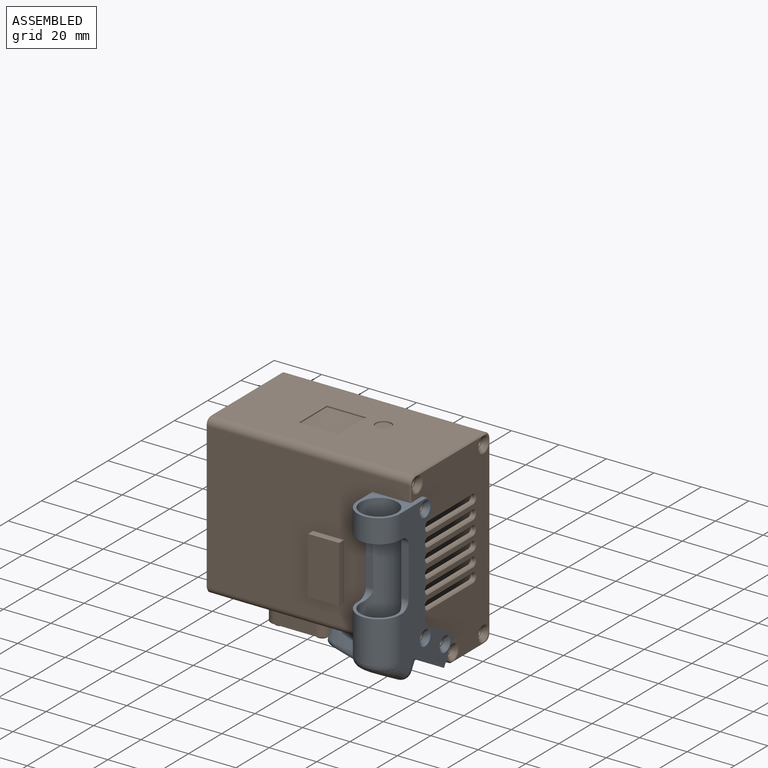
[diagram: assembled view]
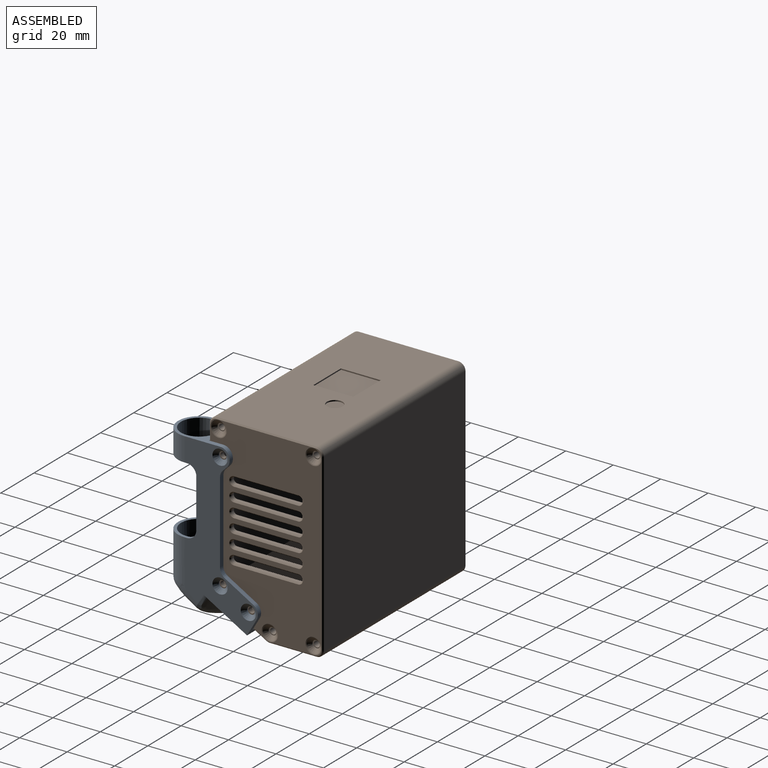
[diagram: assembled view, second angle]
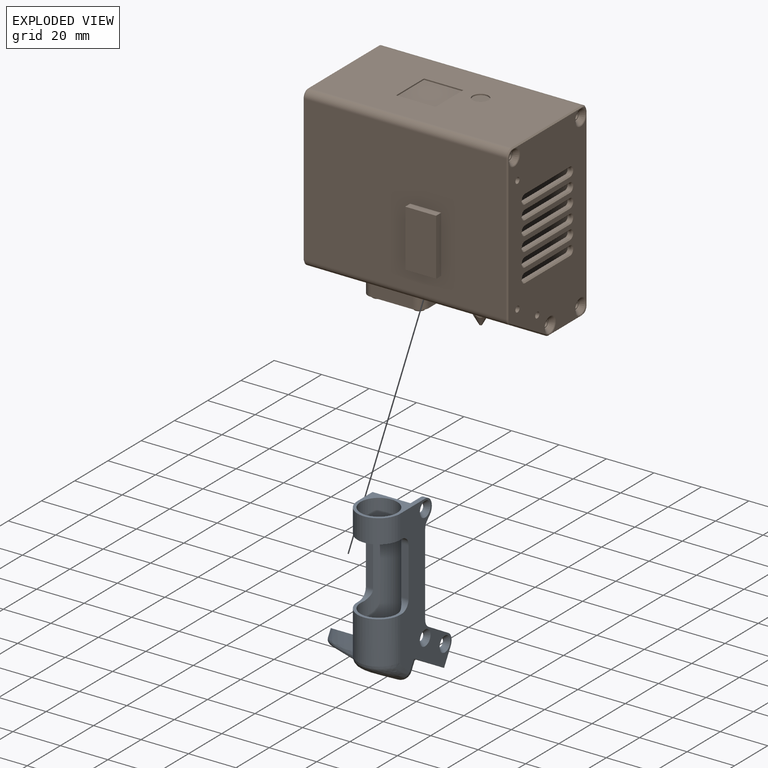
[diagram: exploded view]
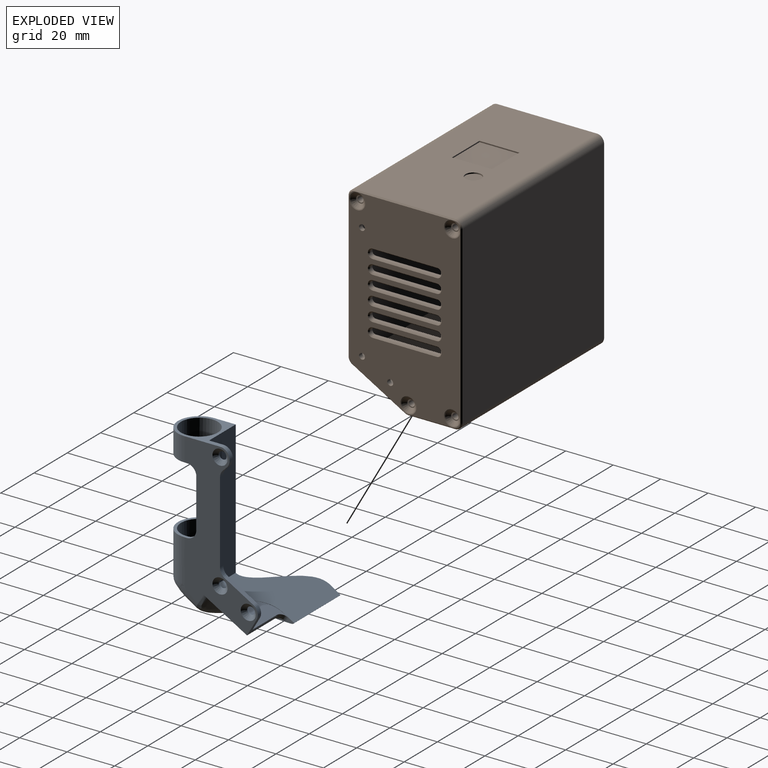
[diagram: exploded view, second angle]
ASSEMBLY  parts=2 mates=2
PART A: 44 faces, bbox 49.5x42.7x74.7 mm
  f0: plane 18x10mm, normal (0,0,-1), area 35.4mm2, adj f4,f6,f9,f30,f33,f34
  f1: bspline ~49.36x28.75mm, area 862.3mm2, adj f3,f4,f6,f11,f14,f21,f22,f23
  f2: plane 56.5x16mm, normal (0,1,0), area 904mm2, adj f3,f4,f20,f21
  f3: plane 45.86x23.54mm, normal (0,0.5,0.87), area 651.9mm2, adj f1,f2,f21,f42
  f4: plane 62.27x9.13mm, normal (-1,0,0), area 402.6mm2, adj f0,f1,f2,f5,f7,f11,f20,f30
  f5: cylinder r=9mm len=18mm, axis (0,0,-1), area 508.9mm2, adj f4,f6,f7,f11
  f6: plane 68.96x31.02mm, normal (1,0,0), area 895mm2, adj f0,f1,f5,f7,f11,f15,f16,f17
  f7: plane 18x10mm, normal (0,0,1), area 35.4mm2, adj f4,f5,f6,f9,f35,f36
  f8: plane 15.5x15.5mm, normal (0,0,1), area 75.6mm2, adj f9,f10
  f9: cylinder r=7.75mm len=52.5mm, axis (0,0,1), area 1569.2mm2, adj f0,f7,f8,f20,f31,f32,f33,f34
  f10: cylinder r=6mm len=12mm, axis (0,0,1), area 150.8mm2, adj f8,f12
  f11: bspline ~18x16.95mm, area 328mm2, adj f1,f4,f5,f6
  f12: bspline ~15x14.25mm, area 309mm2, adj f10,f13
  f13: bspline ~44.79x27.26mm, area 1326.2mm2, adj f12,f14,f42
  f14: plane 28.31x8.76mm, normal (0,0,-1), area 71.1mm2, adj f1,f13,f42
  f15: plane 16.61x6.93mm, normal (0,0.87,-0.5), area 45.2mm2, adj f6,f21,f22,f23,f37,f43
  f16: plane 11.9x6.87mm, normal (0,0.5,0.87), area 27.5mm2, adj f6,f21,f37,f38
  f17: plane 34.45x2mm, normal (0,1,0), area 68.9mm2, adj f6,f21,f38,f39
  f18: plane 2x1.66mm, normal (0,0.71,-0.71), area 4.7mm2, adj f6,f21,f39,f40
  f19: plane 2x0.34mm, normal (0,1,0), area 0.7mm2, adj f6,f21,f40,f41
  f20: plane 24x18mm, normal (0,0,1), area 112.5mm2, adj f2,f4,f6,f9,f21,f30,f41
  f21: plane 67.1x21.9mm, normal (-1,0,0), area 521.3mm2, adj f1,f2,f3,f15,f16,f17,f18,f19
  f22: plane 17.9x17.79mm, normal (0,0.5,0.87), area 189.6mm2, adj f1,f15,f21,f43
  f23: plane 21.2x19.79mm, normal (0,-0.5,-0.87), area 226.8mm2, adj f1,f6,f15,f43
  f24: cylinder r=1.65mm len=3.3mm, axis (1,0,0), area 4.7mm2, adj f21,f25
  f25: cone r=1.65mm half-angle=45deg, axis (1,0,0), area 33.4mm2, adj f6,f24
  f26: cylinder r=1.65mm len=3.3mm, axis (1,0,0), area 4.7mm2, adj f21,f27
  f27: cone r=1.65mm half-angle=45deg, axis (1,0,0), area 33.4mm2, adj f6,f26
  f28: cylinder r=1.65mm len=3.3mm, axis (1,0,0), area 4.7mm2, adj f21,f29
  f29: cone r=1.65mm half-angle=45deg, axis (1,0,0), area 33.4mm2, adj f6,f28
  f30: cylinder r=9mm len=18mm, axis (0,0,1), area 282.7mm2, adj f0,f4,f6,f20
  f31: plane 20.5x3.08mm, normal (0,-1,0), area 63.1mm2, adj f4,f9,f34,f36
  f32: plane 20.5x3.08mm, normal (0,-1,0), area 63.1mm2, adj f6,f9,f33,f35
  f33: cylinder r=4mm len=4mm, axis (-1,0,0), area 13.8mm2, adj f0,f6,f9,f32
  f34: cylinder r=4mm len=4mm, axis (-1,0,0), area 13.8mm2, adj f0,f4,f9,f31
  f35: cylinder r=4mm len=4mm, axis (1,0,0), area 13.8mm2, adj f6,f7,f9,f32
  f36: cylinder r=4mm len=4mm, axis (1,0,0), area 13.8mm2, adj f4,f7,f9,f31
  f37: cylinder r=4mm len=5.46mm, axis (-1,0,0), area 12.6mm2, adj f6,f15,f16,f21
  f38: cylinder r=4mm len=3.46mm, axis (-1,0,0), area 8.4mm2, adj f6,f16,f17,f21
  f39: cylinder r=4mm len=2.83mm, axis (1,0,0), area 6.3mm2, adj f6,f17,f18,f21
  f40: cylinder r=4mm len=2.83mm, axis (-1,0,0), area 6.3mm2, adj f6,f18,f19,f21
  f41: cylinder r=4mm len=4mm, axis (1,0,0), area 12.6mm2, adj f6,f19,f20,f21
  f42: cylinder r=1.5mm len=28.02mm, axis (-1,0,0), area 26.9mm2, adj f1,f3,f13,f14
  f43: bspline ~9.59x7.37mm, area 9.7mm2, adj f1,f15,f22,f23
PART B: 227 faces, bbox 86.2x51x86.8 mm
  f0: plane 3.3x3.3mm, normal (-1,0,0), area 3.6mm2, adj f76,f157
  f1: plane 3.3x3.3mm, normal (-1,0,0), area 3.6mm2, adj f77,f159
  f2: plane 3.3x3.3mm, normal (-1,0,0), area 3.6mm2, adj f78,f161
  f3: plane 3.3x3.3mm, normal (-1,0,0), area 3.6mm2, adj f79,f163
  f4: plane 3.3x3.3mm, normal (1,0,0), area 3.6mm2, adj f76,f82
  f5: plane 3.3x3.3mm, normal (1,0,0), area 3.6mm2, adj f77,f84
  f6: plane 3.3x3.3mm, normal (1,0,0), area 3.6mm2, adj f78,f86
  f7: plane 3.3x3.3mm, normal (1,0,0), area 3.6mm2, adj f79,f88
  f8: plane 85.2x29.1mm, normal (0,0,-1), area 1232.6mm2, adj f25,f26,f27,f28,f29,f30,f32,f34
  f9: plane 85.2x22.3mm, normal (0,-0.5,-0.87), area 1962.7mm2, adj f25,f26,f27,f28,f29,f59,f63,f64
  f10: plane 85.2x42mm, normal (0,0,1), area 3264.3mm2, adj f18,f19,f20,f21,f23,f61,f62,f142
  f11: plane 85.2x61.26mm, normal (0,-1,0), area 4907.3mm2, adj f13,f14,f15,f16,f62,f63,f145,f220
  f12: plane 85.2x74mm, normal (0,1,0), area 6304.8mm2, adj f60,f61,f146,f221
  f13: plane 13x3mm, normal (0,0,1), area 39mm2, adj f11,f14,f16,f17
  f14: plane 24x3mm, normal (-1,0,0), area 72mm2, adj f11,f13,f15,f17
  f15: plane 13x3mm, normal (0,0,-1), area 39mm2, adj f11,f14,f16,f17
  f16: plane 24x3mm, normal (1,0,0), area 72mm2, adj f11,f13,f15,f17
  f17: plane 24x13mm, normal (0,-1,0), area 312mm2, adj f13,f14,f15,f16
  f18: plane 16.6x0.5mm, normal (0,-1,0), area 8.3mm2, adj f10,f19,f21,f22
  f19: plane 16.8x0.5mm, normal (1,0,0), area 8.4mm2, adj f10,f18,f20,f22
  f20: plane 16.6x0.5mm, normal (0,1,0), area 8.3mm2, adj f10,f19,f21,f22
  f21: plane 16.8x0.5mm, normal (-1,0,0), area 8.4mm2, adj f10,f18,f20,f22
  f22: plane 16.8x16.6mm, normal (0,0,1), area 278.9mm2, adj f18,f19,f20,f21
  f23: cylinder r=3.35mm len=6.7mm, axis (0,0,1), area 10.5mm2, adj f10,f24
  f24: plane 6.7x6.7mm, normal (0,0,1), area 35.3mm2, adj f23
  f25: plane 5.4x2.63mm, normal (1,0,0), area 6.1mm2, adj f8,f9,f26,f64
  f26: cylinder r=4mm len=4.91mm, axis (0,0,-1), area 25.7mm2, adj f8,f9,f25,f27
  f27: plane 17.6x4.91mm, normal (0,-1,0), area 86.5mm2, adj f8,f9,f26,f28
  f28: cylinder r=4mm len=4.91mm, axis (0,0,-1), area 25.7mm2, adj f8,f9,f27,f29
  f29: plane 5.4x2.63mm, normal (-1,0,0), area 6.1mm2, adj f8,f9,f28,f59
  f30: cylinder r=2.5mm len=5mm, axis (0,0,1), area 7.9mm2, adj f8,f41
  f31: plane 3x3mm, normal (0,0,-1), area 7.1mm2, adj f41
  f32: cylinder r=2.5mm len=5mm, axis (0,0,1), area 7.9mm2, adj f8,f40
  f33: plane 3x3mm, normal (0,0,-1), area 7.1mm2, adj f40
  f34: cylinder r=2.5mm len=5mm, axis (0,0,1), area 7.9mm2, adj f8,f39
  f35: plane 3x3mm, normal (0,0,-1), area 7.1mm2, adj f39
  f36: cylinder r=2.5mm len=5mm, axis (0,0,1), area 7.9mm2, adj f8,f38
  f37: plane 3x3mm, normal (0,0,-1), area 7.1mm2, adj f38
  f38: torus R=1.5mm, axis (0,0,-1), area 21.1mm2, adj f36,f37
  f39: torus R=1.5mm, axis (0,0,-1), area 21.1mm2, adj f34,f35
  f40: torus R=1.5mm, axis (0,0,-1), area 21.1mm2, adj f32,f33
  f41: torus R=1.5mm, axis (0,0,-1), area 21.1mm2, adj f30,f31
  f42: plane 27.1x1.94mm, normal (0,1,0), area 52.6mm2, adj f43,f49,f50,f64
  f43: cylinder r=2mm len=2mm, axis (0,0,-1), area 6.2mm2, adj f8,f42,f44,f50,f64
  f44: plane 16x2mm, normal (1,0,0), area 32mm2, adj f8,f43,f45,f50
  f45: cylinder r=2mm len=2mm, axis (0,0,-1), area 6.3mm2, adj f8,f44,f46,f50
  f46: plane 27.1x2mm, normal (0,-1,0), area 54.2mm2, adj f8,f45,f47,f50
  f47: cylinder r=2mm len=2mm, axis (0,0,-1), area 6.3mm2, adj f8,f46,f48,f50
  f48: plane 16x2mm, normal (-1,0,0), area 32mm2, adj f8,f47,f49,f50
  f49: cylinder r=2mm len=2mm, axis (0,0,-1), area 6.2mm2, adj f8,f42,f48,f50,f64
  f50: plane 31.1x20mm, normal (0,0,-1), area 595.2mm2, adj f42,f43,f44,f45,f46,f47,f48,f49
  f51: plane 1x1mm, normal (0,0,-1), area 0.8mm2, adj f52
  f52: cone r=0.5mm half-angle=29.1deg, axis (0,0,1), area 46.5mm2, adj f51,f53,f54,f55,f56,f57,f58
  f53: plane 5.03x2.6mm, normal (0.5,-0.87,0), area 14.3mm2, adj f50,f52,f54,f58
  f54: plane 5.03x2.6mm, normal (-0.5,-0.87,0), area 14.3mm2, adj f50,f52,f53,f55
  f55: plane 5.02x3mm, normal (-1,0,0), area 14.3mm2, adj f50,f52,f54,f56
  f56: plane 5.03x2.6mm, normal (-0.5,0.87,0), area 14.3mm2, adj f50,f52,f55,f57
  f57: plane 5.03x2.6mm, normal (0.5,0.87,0), area 14.3mm2, adj f50,f52,f56,f58
  f58: plane 5.02x3mm, normal (1,0,0), area 14.3mm2, adj f50,f52,f53,f57
  f59: cylinder r=3mm len=13mm, axis (1,0,0), area 20.2mm2, adj f8,f9,f29,f226
  f60: cylinder r=3mm len=85.2mm, axis (1,0,0), area 401.5mm2, adj f8,f12,f148,f223
  f61: cylinder r=3mm len=85.2mm, axis (-1,0,0), area 401.5mm2, adj f10,f12,f144,f219
  f62: cylinder r=3mm len=85.2mm, axis (1,0,0), area 401.5mm2, adj f10,f11,f143,f218
  f63: cylinder r=3mm len=85.2mm, axis (1,0,0), area 268.8mm2, adj f9,f11,f147,f222
  f64: cylinder r=3mm len=46.6mm, axis (1,0,0), area 55.1mm2, adj f8,f9,f25,f42,f43,f49,f151
  f65: plane 82.2x66mm, normal (0,-1,0), area 5425.2mm2, adj f66,f73,f81,f156
  f66: cylinder r=4mm len=82.2mm, axis (1,0,0), area 516.5mm2, adj f65,f67,f81,f156
  f67: plane 82.2x34.3mm, normal (0,0,-1), area 2819.5mm2, adj f66,f68,f81,f156
  f68: cylinder r=4mm len=82.2mm, axis (1,0,0), area 407.6mm2, adj f67,f69,f81,f156
  f69: plane 82.2x15.22mm, normal (0,1,0), area 1250.8mm2, adj f68,f70,f81,f156
  f70: plane 82.2x1.3mm, normal (0,0,-1), area 106.9mm2, adj f69,f71,f81,f156
  f71: plane 82.2x42.09mm, normal (0,1,0), area 3459.6mm2, adj f70,f72,f81,f156
  f72: plane 82.2x19.12mm, normal (0,0.5,0.87), area 1810.5mm2, adj f71,f74,f81,f156
  f73: cylinder r=4mm len=82.2mm, axis (1,0,0), area 516.5mm2, adj f65,f75,f81,f156
  f74: cylinder r=4mm len=82.2mm, axis (1,0,0), area 862.3mm2, adj f72,f75,f81,f156
  f75: plane 82.2x11.7mm, normal (0,0,1), area 962mm2, adj f73,f74,f81,f156
  f76: cylinder r=1.25mm len=82.2mm, axis (1,0,0), area 645.6mm2, adj f0,f4
  f77: cylinder r=1.25mm len=82.2mm, axis (1,0,0), area 645.6mm2, adj f1,f5
  f78: cylinder r=1.25mm len=82.2mm, axis (1,0,0), area 645.6mm2, adj f2,f6
  f79: cylinder r=1.25mm len=82.2mm, axis (1,0,0), area 645.6mm2, adj f3,f7
  f80: plane 79x47mm, normal (1,0,0), area 2658.2mm2, adj f114,f115,f116,f117,f118,f119,f120,f121
  f81: plane 74x42.3mm, normal (-1,0,0), area 2362.9mm2, adj f65,f66,f67,f68,f69,f70,f71,f72
  f82: cylinder r=1.65mm len=3.3mm, axis (1,0,0), area 4.7mm2, adj f4,f83
  f83: cone r=1.65mm half-angle=45deg, axis (1,0,0), area 29.3mm2, adj f82,f138
  f84: cylinder r=1.65mm len=3.3mm, axis (1,0,0), area 4.7mm2, adj f5,f85
  f85: cone r=1.65mm half-angle=45deg, axis (1,0,0), area 29.3mm2, adj f84,f139
  f86: cylinder r=1.65mm len=3.3mm, axis (1,0,0), area 4.7mm2, adj f6,f87
  f87: cone r=1.65mm half-angle=45deg, axis (1,0,0), area 29.3mm2, adj f86,f140
  f88: cylinder r=1.65mm len=3.3mm, axis (1,0,0), area 4.7mm2, adj f7,f89
  f89: cone r=1.65mm half-angle=45deg, axis (1,0,0), area 29.3mm2, adj f88,f141
  f90: cylinder r=1.5mm len=3mm, axis (1,0,0), area 7.1mm2, adj f81,f91,f92,f114
  f91: plane 27x1.5mm, normal (0,0,-1), area 40.5mm2, adj f81,f90,f93,f115
  f92: plane 27x1.5mm, normal (0,0,1), area 40.5mm2, adj f81,f90,f93,f116
  f93: cylinder r=1.5mm len=3mm, axis (1,0,0), area 7.1mm2, adj f81,f91,f92,f117
  f94: cylinder r=1.5mm len=3mm, axis (1,0,0), area 7.1mm2, adj f81,f95,f96,f118
  f95: plane 27x1.5mm, normal (0,0,-1), area 40.5mm2, adj f81,f94,f97,f119
  f96: plane 27x1.5mm, normal (0,0,1), area 40.5mm2, adj f81,f94,f97,f120
  f97: cylinder r=1.5mm len=3mm, axis (1,0,0), area 7.1mm2, adj f81,f95,f96,f121
  f98: cylinder r=1.5mm len=3mm, axis (1,0,0), area 7.1mm2, adj f81,f99,f100,f122
  f99: plane 27x1.5mm, normal (0,0,-1), area 40.5mm2, adj f81,f98,f101,f123
  f100: plane 27x1.5mm, normal (0,0,1), area 40.5mm2, adj f81,f98,f101,f124
  f101: cylinder r=1.5mm len=3mm, axis (1,0,0), area 7.1mm2, adj f81,f99,f100,f125
  f102: cylinder r=1.5mm len=3mm, axis (1,0,0), area 7.1mm2, adj f81,f103,f104,f126
  f103: plane 27x1.5mm, normal (0,0,-1), area 40.5mm2, adj f81,f102,f105,f127
  f104: plane 27x1.5mm, normal (0,0,1), area 40.5mm2, adj f81,f102,f105,f128
  f105: cylinder r=1.5mm len=3mm, axis (1,0,0), area 7.1mm2, adj f81,f103,f104,f129
  f106: cylinder r=1.5mm len=3mm, axis (1,0,0), area 7.1mm2, adj f81,f107,f108,f130
  f107: plane 27x1.5mm, normal (0,0,-1), area 40.5mm2, adj f81,f106,f109,f131
  f108: plane 27x1.5mm, normal (0,0,1), area 40.5mm2, adj f81,f106,f109,f132
  f109: cylinder r=1.5mm len=3mm, axis (1,0,0), area 7.1mm2, adj f81,f107,f108,f133
  f110: cylinder r=1.5mm len=3mm, axis (1,0,0), area 7.1mm2, adj f81,f111,f112,f135
  f111: plane 27x1.5mm, normal (0,0,-1), area 40.5mm2, adj f81,f110,f113,f134
  f112: plane 27x1.5mm, normal (0,0,1), area 40.5mm2, adj f81,f110,f113,f137
  f113: cylinder r=1.5mm len=3mm, axis (1,0,0), area 7.1mm2, adj f81,f111,f112,f136
  f114: cone r=2mm half-angle=45deg, axis (1,0,0), area 3.9mm2, adj f80,f90,f115,f116
  f115: plane 27x0.5mm, normal (0.71,0,-0.71), area 19.1mm2, adj f80,f91,f114,f117
  f116: plane 27x0.5mm, normal (0.71,0,0.71), area 19.1mm2, adj f80,f92,f114,f117
  f117: cone r=2mm half-angle=45deg, axis (1,0,0), area 3.9mm2, adj f80,f93,f115,f116
  f118: cone r=2mm half-angle=45deg, axis (1,0,0), area 3.9mm2, adj f80,f94,f119,f120
  f119: plane 27x0.5mm, normal (0.71,0,-0.71), area 19.1mm2, adj f80,f95,f118,f121
  f120: plane 27x0.5mm, normal (0.71,0,0.71), area 19.1mm2, adj f80,f96,f118,f121
  f121: cone r=2mm half-angle=45deg, axis (1,0,0), area 3.9mm2, adj f80,f97,f119,f120
  f122: cone r=2mm half-angle=45deg, axis (1,0,0), area 3.9mm2, adj f80,f98,f123,f124
  f123: plane 27x0.5mm, normal (0.71,0,-0.71), area 19.1mm2, adj f80,f99,f122,f125
  f124: plane 27x0.5mm, normal (0.71,0,0.71), area 19.1mm2, adj f80,f100,f122,f125
  f125: cone r=2mm half-angle=45deg, axis (1,0,0), area 3.9mm2, adj f80,f101,f123,f124
  f126: cone r=2mm half-angle=45deg, axis (1,0,0), area 3.9mm2, adj f80,f102,f127,f128
  f127: plane 27x0.5mm, normal (0.71,0,-0.71), area 19.1mm2, adj f80,f103,f126,f129
  f128: plane 27x0.5mm, normal (0.71,0,0.71), area 19.1mm2, adj f80,f104,f126,f129
  f129: cone r=2mm half-angle=45deg, axis (1,0,0), area 3.9mm2, adj f80,f105,f127,f128
  f130: cone r=2mm half-angle=45deg, axis (1,0,0), area 3.9mm2, adj f80,f106,f131,f132
  f131: plane 27x0.5mm, normal (0.71,0,-0.71), area 19.1mm2, adj f80,f107,f130,f133
  f132: plane 27x0.5mm, normal (0.71,0,0.71), area 19.1mm2, adj f80,f108,f130,f133
  f133: cone r=2mm half-angle=45deg, axis (1,0,0), area 3.9mm2, adj f80,f109,f131,f132
  f134: plane 27x0.5mm, normal (0.71,0,-0.71), area 19.1mm2, adj f80,f111,f135,f136
  f135: cone r=2mm half-angle=45deg, axis (1,0,0), area 3.9mm2, adj f80,f110,f134,f137
  f136: cone r=2mm half-angle=45deg, axis (1,0,0), area 3.9mm2, adj f80,f113,f134,f137
  f137: plane 27x0.5mm, normal (0.71,0,0.71), area 19.1mm2, adj f80,f112,f135,f136
  f138: cone r=3.05mm half-angle=67.5deg, axis (1,0,0), area 7.8mm2, adj f80,f83
  f139: cone r=3.05mm half-angle=67.5deg, axis (1,0,0), area 7.8mm2, adj f80,f85
  f140: cone r=3.05mm half-angle=67.5deg, axis (1,0,0), area 7.8mm2, adj f80,f87
  f141: cone r=3.05mm half-angle=67.5deg, axis (1,0,0), area 7.8mm2, adj f80,f89
  f142: plane 42x0.5mm, normal (0.71,0,0.71), area 29.7mm2, adj f10,f80,f143,f144
  f143: cone r=2.5mm half-angle=45deg, axis (-1,0,0), area 3.1mm2, adj f62,f80,f142,f145
  f144: cone r=2.5mm half-angle=45deg, axis (-1,0,0), area 3.1mm2, adj f61,f80,f142,f146
  f145: plane 61.26x0.5mm, normal (0.71,-0.71,0), area 43.3mm2, adj f11,f80,f143,f147
  f146: plane 74x0.5mm, normal (0.71,0.71,0), area 52.3mm2, adj f12,f80,f144,f148
  f147: cone r=2.5mm half-angle=45deg, axis (-1,0,0), area 2mm2, adj f63,f80,f145,f149
  f148: cone r=2.5mm half-angle=45deg, axis (-1,0,0), area 3.1mm2, adj f60,f80,f146,f150
  f149: plane 22.54x13.18mm, normal (0.71,-0.35,-0.61), area 18.2mm2, adj f9,f80,f147,f151
  f150: plane 19.7x0.5mm, normal (0.71,0,-0.71), area 13.9mm2, adj f8,f80,f148,f151
  f151: cone r=2.5mm half-angle=45deg, axis (-1,0,0), area 1mm2, adj f64,f80,f149,f150
  f152: cylinder r=1.25mm len=2.5mm, axis (1,0,0), area 15.7mm2, adj f80,f81
  f153: cylinder r=1.25mm len=2.5mm, axis (1,0,0), area 15.7mm2, adj f80,f81
  f154: cylinder r=1.25mm len=2.5mm, axis (1,0,0), area 15.7mm2, adj f80,f81
  f155: plane 79x47mm, normal (-1,0,0), area 2672.9mm2, adj f189,f190,f191,f192,f193,f194,f195,f196
  f156: plane 74x42.3mm, normal (1,0,0), area 2377.6mm2, adj f65,f66,f67,f68,f69,f70,f71,f72
  f157: cylinder r=1.65mm len=3.3mm, axis (-1,0,0), area 4.7mm2, adj f0,f158
  f158: cone r=1.65mm half-angle=45deg, axis (-1,0,0), area 29.3mm2, adj f157,f213
  f159: cylinder r=1.65mm len=3.3mm, axis (-1,0,0), area 4.7mm2, adj f1,f160
  f160: cone r=1.65mm half-angle=45deg, axis (-1,0,0), area 29.3mm2, adj f159,f214
  f161: cylinder r=1.65mm len=3.3mm, axis (-1,0,0), area 4.7mm2, adj f2,f162
  f162: cone r=1.65mm half-angle=45deg, axis (-1,0,0), area 29.3mm2, adj f161,f215
  f163: cylinder r=1.65mm len=3.3mm, axis (-1,0,0), area 4.7mm2, adj f3,f164
  f164: cone r=1.65mm half-angle=45deg, axis (-1,0,0), area 29.3mm2, adj f163,f216
  f165: cylinder r=1.5mm len=3mm, axis (-1,0,0), area 7.1mm2, adj f156,f166,f167,f189
  f166: plane 27x1.5mm, normal (0,0,-1), area 40.5mm2, adj f156,f165,f168,f190
  f167: plane 27x1.5mm, normal (0,0,1), area 40.5mm2, adj f156,f165,f168,f191
  f168: cylinder r=1.5mm len=3mm, axis (-1,0,0), area 7.1mm2, adj f156,f166,f167,f192
  f169: cylinder r=1.5mm len=3mm, axis (-1,0,0), area 7.1mm2, adj f156,f170,f171,f193
  f170: plane 27x1.5mm, normal (0,0,-1), area 40.5mm2, adj f156,f169,f172,f194
  f171: plane 27x1.5mm, normal (0,0,1), area 40.5mm2, adj f156,f169,f172,f195
  f172: cylinder r=1.5mm len=3mm, axis (-1,0,0), area 7.1mm2, adj f156,f170,f171,f196
  f173: cylinder r=1.5mm len=3mm, axis (-1,0,0), area 7.1mm2, adj f156,f174,f175,f197
  f174: plane 27x1.5mm, normal (0,0,-1), area 40.5mm2, adj f156,f173,f176,f198
  f175: plane 27x1.5mm, normal (0,0,1), area 40.5mm2, adj f156,f173,f176,f199
  f176: cylinder r=1.5mm len=3mm, axis (-1,0,0), area 7.1mm2, adj f156,f174,f175,f200
  f177: cylinder r=1.5mm len=3mm, axis (-1,0,0), area 7.1mm2, adj f156,f178,f179,f201
  f178: plane 27x1.5mm, normal (0,0,-1), area 40.5mm2, adj f156,f177,f180,f202
  f179: plane 27x1.5mm, normal (0,0,1), area 40.5mm2, adj f156,f177,f180,f203
  f180: cylinder r=1.5mm len=3mm, axis (-1,0,0), area 7.1mm2, adj f156,f178,f179,f204
  f181: cylinder r=1.5mm len=3mm, axis (-1,0,0), area 7.1mm2, adj f156,f182,f183,f205
  f182: plane 27x1.5mm, normal (0,0,-1), area 40.5mm2, adj f156,f181,f184,f206
  f183: plane 27x1.5mm, normal (0,0,1), area 40.5mm2, adj f156,f181,f184,f207
  f184: cylinder r=1.5mm len=3mm, axis (-1,0,0), area 7.1mm2, adj f156,f182,f183,f208
  f185: cylinder r=1.5mm len=3mm, axis (-1,0,0), area 7.1mm2, adj f156,f186,f187,f210
  f186: plane 27x1.5mm, normal (0,0,-1), area 40.5mm2, adj f156,f185,f188,f209
  f187: plane 27x1.5mm, normal (0,0,1), area 40.5mm2, adj f156,f185,f188,f212
  f188: cylinder r=1.5mm len=3mm, axis (-1,0,0), area 7.1mm2, adj f156,f186,f187,f211
  f189: cone r=2mm half-angle=45deg, axis (-1,0,0), area 3.9mm2, adj f155,f165,f190,f191
  f190: plane 27x0.5mm, normal (-0.71,0,-0.71), area 19.1mm2, adj f155,f166,f189,f192
  f191: plane 27x0.5mm, normal (-0.71,0,0.71), area 19.1mm2, adj f155,f167,f189,f192
  f192: cone r=2mm half-angle=45deg, axis (-1,0,0), area 3.9mm2, adj f155,f168,f190,f191
  f193: cone r=2mm half-angle=45deg, axis (-1,0,0), area 3.9mm2, adj f155,f169,f194,f195
  f194: plane 27x0.5mm, normal (-0.71,0,-0.71), area 19.1mm2, adj f155,f170,f193,f196
  f195: plane 27x0.5mm, normal (-0.71,0,0.71), area 19.1mm2, adj f155,f171,f193,f196
  f196: cone r=2mm half-angle=45deg, axis (-1,0,0), area 3.9mm2, adj f155,f172,f194,f195
  f197: cone r=2mm half-angle=45deg, axis (-1,0,0), area 3.9mm2, adj f155,f173,f198,f199
  f198: plane 27x0.5mm, normal (-0.71,0,-0.71), area 19.1mm2, adj f155,f174,f197,f200
  f199: plane 27x0.5mm, normal (-0.71,0,0.71), area 19.1mm2, adj f155,f175,f197,f200
  f200: cone r=2mm half-angle=45deg, axis (-1,0,0), area 3.9mm2, adj f155,f176,f198,f199
  f201: cone r=2mm half-angle=45deg, axis (-1,0,0), area 3.9mm2, adj f155,f177,f202,f203
  f202: plane 27x0.5mm, normal (-0.71,0,-0.71), area 19.1mm2, adj f155,f178,f201,f204
  f203: plane 27x0.5mm, normal (-0.71,0,0.71), area 19.1mm2, adj f155,f179,f201,f204
  f204: cone r=2mm half-angle=45deg, axis (-1,0,0), area 3.9mm2, adj f155,f180,f202,f203
  f205: cone r=2mm half-angle=45deg, axis (-1,0,0), area 3.9mm2, adj f155,f181,f206,f207
  f206: plane 27x0.5mm, normal (-0.71,0,-0.71), area 19.1mm2, adj f155,f182,f205,f208
  f207: plane 27x0.5mm, normal (-0.71,0,0.71), area 19.1mm2, adj f155,f183,f205,f208
  f208: cone r=2mm half-angle=45deg, axis (-1,0,0), area 3.9mm2, adj f155,f184,f206,f207
  f209: plane 27x0.5mm, normal (-0.71,0,-0.71), area 19.1mm2, adj f155,f186,f210,f211
  f210: cone r=2mm half-angle=45deg, axis (-1,0,0), area 3.9mm2, adj f155,f185,f209,f212
  f211: cone r=2mm half-angle=45deg, axis (-1,0,0), area 3.9mm2, adj f155,f188,f209,f212
  f212: plane 27x0.5mm, normal (-0.71,0,0.71), area 19.1mm2, adj f155,f187,f210,f211
  f213: cone r=3.05mm half-angle=67.5deg, axis (-1,0,0), area 7.8mm2, adj f155,f158
  f214: cone r=3.05mm half-angle=67.5deg, axis (-1,0,0), area 7.8mm2, adj f155,f160
  f215: cone r=3.05mm half-angle=67.5deg, axis (-1,0,0), area 7.8mm2, adj f155,f162
  f216: cone r=3.05mm half-angle=67.5deg, axis (-1,0,0), area 7.8mm2, adj f155,f164
  f217: plane 42x0.5mm, normal (-0.71,0,0.71), area 29.7mm2, adj f10,f155,f218,f219
  f218: cone r=2.5mm half-angle=45deg, axis (1,0,0), area 3.1mm2, adj f62,f155,f217,f220
  f219: cone r=2.5mm half-angle=45deg, axis (1,0,0), area 3.1mm2, adj f61,f155,f217,f221
  f220: plane 61.26x0.5mm, normal (-0.71,-0.71,0), area 43.3mm2, adj f11,f155,f218,f222
  f221: plane 74x0.5mm, normal (-0.71,0.71,0), area 52.3mm2, adj f12,f155,f219,f223
  f222: cone r=2.5mm half-angle=45deg, axis (1,0,0), area 2mm2, adj f63,f155,f220,f224
  f223: cone r=2.5mm half-angle=45deg, axis (1,0,0), area 3.1mm2, adj f60,f155,f221,f225
  f224: plane 22.54x13.18mm, normal (-0.71,-0.35,-0.61), area 18.2mm2, adj f9,f155,f222,f226
  f225: plane 19.7x0.5mm, normal (-0.71,0,-0.71), area 13.9mm2, adj f8,f155,f223,f226
  f226: cone r=2.5mm half-angle=45deg, axis (1,0,0), area 1mm2, adj f59,f155,f224,f225
PLACE A t=(36.1,-48,14)mm
PLACE B at identity fixed
MATE planar A.f3 <-> B.f9  axis (0,0.5,0.87) through (18.79,-35.13,6.65)mm
MATE planar A.f2 <-> B.f11  axis (0,1,0) through (35.1,-48,42.25)mm
